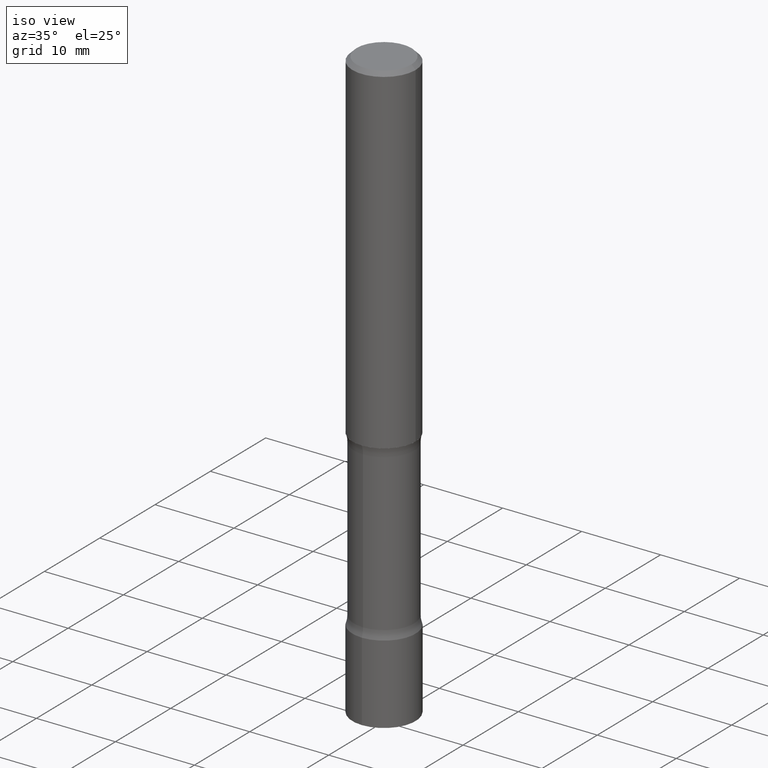
[diagram: clean part render]
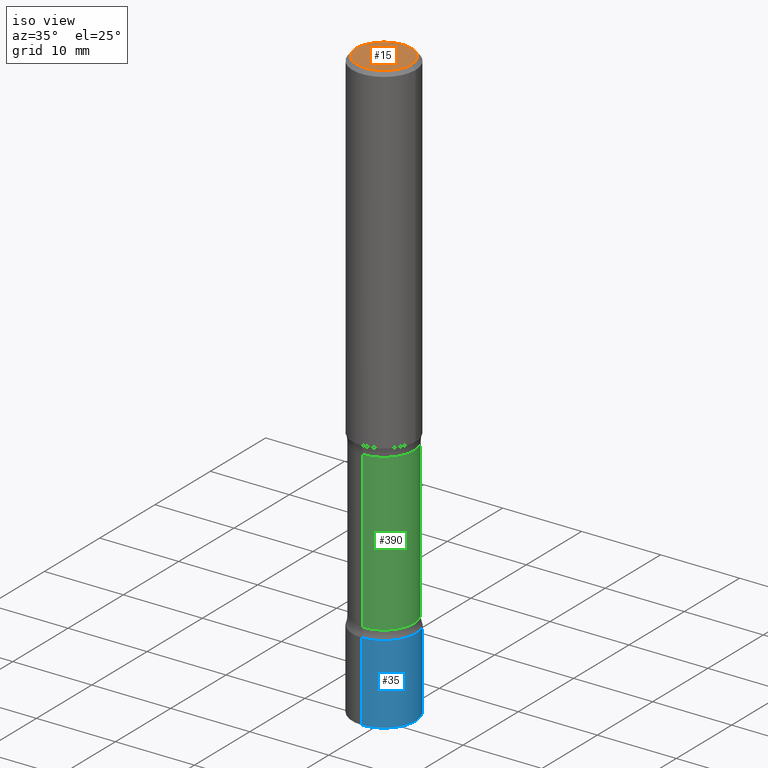
[diagram: same view with three faces highlighted in distinct colors, each labeled with its STEP entity id]
A machine part, iso view with three faces highlighted in distinct colors.
Their STEP definitions:

[orange] entity #15 — the highlighted planar face has unit normal (0, -0, -1).
#5 = CARTESIAN_POINT ( 'NONE',  ( -0.1374999999999997058, 9.950721815702907580E-16, 4.268512490093574228E-18 ) ) ;
#15 = ADVANCED_FACE ( 'NONE', ( #349 ), #304, .F. ) ;
#17 = AXIS2_PLACEMENT_3D ( 'NONE', #232, #28, #420 ) ;
#28 = DIRECTION ( 'NONE',  ( -2.445468806185136597E-29, 3.491481338843145583E-15, 1.000000000000000000 ) ) ;
#67 = EDGE_CURVE ( 'NONE', #365, #215, #293, .T. ) ;
#119 = CARTESIAN_POINT ( 'NONE',  ( 9.601573681818595033E-16, 0.1374999999999997058, -4.779444278458812147E-16 ) ) ;
#134 = AXIS2_PLACEMENT_3D ( 'NONE', #119, #463, #235 ) ;
#210 = CIRCLE ( 'NONE', #305, 0.1374999999999997058 ) ;
#215 = VERTEX_POINT ( 'NONE', #5 ) ;
#232 = CARTESIAN_POINT ( 'NONE',  ( -1.043851414335219820E-46, 1.490343170380447200E-32, 4.268512490100411279E-18 ) ) ;
#235 = DIRECTION ( 'NONE',  ( -1.000000000000000000, 6.982962677686265922E-15, -4.876176775795935793E-29 ) ) ;
#243 = CARTESIAN_POINT ( 'NONE',  ( 0.1374999999999997058, -1.046838268059730519E-15, 4.268512490107428597E-18 ) ) ;
#246 = ORIENTED_EDGE ( 'NONE', *, *, #351, .T. ) ;
#293 = CIRCLE ( 'NONE', #17, 0.1374999999999997058 ) ;
#304 = PLANE ( 'NONE',  #134 ) ;
#305 = AXIS2_PLACEMENT_3D ( 'NONE', #468, #324, #319 ) ;
#319 = DIRECTION ( 'NONE',  ( 1.000000000000000000, -6.982962677686265922E-15, 4.876173381029110692E-29 ) ) ;
#324 = DIRECTION ( 'NONE',  ( -2.445468806185136597E-29, 3.491481338843145583E-15, 1.000000000000000000 ) ) ;
#349 = FACE_OUTER_BOUND ( 'NONE', #412, .T. ) ;
#351 = EDGE_CURVE ( 'NONE', #215, #365, #210, .T. ) ;
#365 = VERTEX_POINT ( 'NONE', #243 ) ;
#412 = EDGE_LOOP ( 'NONE', ( #246, #455 ) ) ;
#420 = DIRECTION ( 'NONE',  ( 1.000000000000000000, -6.982962677686265922E-15, 4.876173381029110692E-29 ) ) ;
#455 = ORIENTED_EDGE ( 'NONE', *, *, #67, .T. ) ;
#463 = DIRECTION ( 'NONE',  ( 2.438088387897960049E-29, -3.491481338843145188E-15, -1.000000000000000000 ) ) ;
#468 = CARTESIAN_POINT ( 'NONE',  ( -1.043851414335219820E-46, 1.490343170380447200E-32, 4.268512490100411279E-18 ) ) ;

[blue] entity #35 — the highlighted cylindrical surface (partial cylindrical patch) has radius 4.0005 mm, axis along (-0, 0, 1).
#6 = ORIENTED_EDGE ( 'NONE', *, *, #432, .F. ) ;
#25 = AXIS2_PLACEMENT_3D ( 'NONE', #112, #151, #426 ) ;
#35 = ADVANCED_FACE ( 'NONE', ( #386 ), #230, .T. ) ;
#41 = CARTESIAN_POINT ( 'NONE',  ( -1.099816621735586494E-15, -0.1574999999999999456, 5.498613975020886768E-16 ) ) ;
#46 = ORIENTED_EDGE ( 'NONE', *, *, #89, .F. ) ;
#72 = VECTOR ( 'NONE', #159, 39.37007874015748143 ) ;
#74 = DIRECTION ( 'NONE',  ( -2.445676802554542366E-29, 3.491183476203738463E-15, 1.000000000000000000 ) ) ;
#82 = DIRECTION ( 'NONE',  ( -2.445676802554542646E-29, 3.491183476203738463E-15, 1.000000000000000000 ) ) ;
#89 = EDGE_CURVE ( 'NONE', #431, #462, #145, .T. ) ;
#90 = EDGE_LOOP ( 'NONE', ( #496, #297, #46, #6 ) ) ;
#112 = CARTESIAN_POINT ( 'NONE',  ( 7.221594462583051654E-29, -1.030876656853439613E-14, -2.952799999999999869 ) ) ;
#117 = DIRECTION ( 'NONE',  ( -2.445676802554542366E-29, 3.491183476203738463E-15, 1.000000000000000000 ) ) ;
#120 = EDGE_CURVE ( 'NONE', #480, #462, #228, .T. ) ;
#145 = CIRCLE ( 'NONE', #282, 0.1574999999999999456 ) ;
#147 = DIRECTION ( 'NONE',  ( -6.982962677686265922E-15, -1.000000000000000000, 3.491183476203738857E-15 ) ) ;
#151 = DIRECTION ( 'NONE',  ( -2.445676802554542366E-29, 3.491183476203738463E-15, 1.000000000000000000 ) ) ;
#157 = CARTESIAN_POINT ( 'NONE',  ( -1.099816621735514116E-15, -0.1575000000000102707, -2.952799999999998981 ) ) ;
#159 = DIRECTION ( 'NONE',  ( -2.445676802554542646E-29, 3.491183476203738463E-15, 1.000000000000000000 ) ) ;
#209 = CARTESIAN_POINT ( 'NONE',  ( 1.119104808822229587E-15, 0.1574999999999910083, -2.559099999999999486 ) ) ;
#228 = LINE ( 'NONE', #506, #72 ) ;
#230 = CYLINDRICAL_SURFACE ( 'NONE', #355, 0.1574999999999999456 ) ;
#269 = CARTESIAN_POINT ( 'NONE',  ( 6.258731505417325033E-29, -8.934287633952984269E-15, -2.559099999999999042 ) ) ;
#282 = AXIS2_PLACEMENT_3D ( 'NONE', #269, #74, #393 ) ;
#288 = LINE ( 'NONE', #41, #487 ) ;
#297 = ORIENTED_EDGE ( 'NONE', *, *, #120, .T. ) ;
#315 = EDGE_CURVE ( 'NONE', #362, #480, #429, .T. ) ;
#355 = AXIS2_PLACEMENT_3D ( 'NONE', #422, #117, #147 ) ;
#362 = VERTEX_POINT ( 'NONE', #157 ) ;
#367 = CARTESIAN_POINT ( 'NONE',  ( 1.119104808822224657E-15, 0.1574999999999896483, -2.952800000000000313 ) ) ;
#386 = FACE_OUTER_BOUND ( 'NONE', #90, .T. ) ;
#393 = DIRECTION ( 'NONE',  ( -6.982962677686265922E-15, -1.000000000000000000, 3.469013325287954477E-15 ) ) ;
#399 = CARTESIAN_POINT ( 'NONE',  ( -1.099816621735523977E-15, -0.1575000000000089106, -2.559099999999998598 ) ) ;
#422 = CARTESIAN_POINT ( 'NONE',  ( 0.000000000000000000, 0.000000000000000000, 0.000000000000000000 ) ) ;
#426 = DIRECTION ( 'NONE',  ( -6.982962677686265922E-15, -1.000000000000000000, 3.469013325287954477E-15 ) ) ;
#429 = CIRCLE ( 'NONE', #25, 0.1574999999999999456 ) ;
#431 = VERTEX_POINT ( 'NONE', #399 ) ;
#432 = EDGE_CURVE ( 'NONE', #362, #431, #288, .T. ) ;
#462 = VERTEX_POINT ( 'NONE', #209 ) ;
#480 = VERTEX_POINT ( 'NONE', #367 ) ;
#487 = VECTOR ( 'NONE', #82, 39.37007874015748143 ) ;
#496 = ORIENTED_EDGE ( 'NONE', *, *, #315, .T. ) ;
#506 = CARTESIAN_POINT ( 'NONE',  ( 1.119104808822157209E-15, 0.1574999999999999456, -5.498613975020886768E-16 ) ) ;

[green] entity #390 — the highlighted cylindrical surface (partial cylindrical patch) has radius 3.7973 mm, axis along (0, -0, -1).
#1 = DIRECTION ( 'NONE',  ( 6.982962677686264344E-15, 1.000000000000000000, -3.654646145370266300E-15 ) ) ;
#2 = CARTESIAN_POINT ( 'NONE',  ( -1.053086442657868786E-15, -0.1495000000000089313, -2.515099999999999003 ) ) ;
#65 = DIRECTION ( 'NONE',  ( 1.998890425235319808E-29, -4.131006998026227215E-15, -1.000000000000000000 ) ) ;
#73 = CIRCLE ( 'NONE', #225, 0.1494999999999994111 ) ;
#93 = ORIENTED_EDGE ( 'NONE', *, *, #385, .T. ) ;
#99 = CIRCLE ( 'NONE', #389, 0.1495000000000001605 ) ;
#103 = ORIENTED_EDGE ( 'NONE', *, *, #278, .F. ) ;
#106 = EDGE_CURVE ( 'NONE', #213, #454, #99, .T. ) ;
#115 = DIRECTION ( 'NONE',  ( 1.998890425235319808E-29, -4.131006998026227215E-15, -1.000000000000000000 ) ) ;
#123 = CYLINDRICAL_SURFACE ( 'NONE', #301, 0.1494999999999997720 ) ;
#132 = CARTESIAN_POINT ( 'NONE',  ( 7.045694665832473199E-29, -1.056066508907591234E-14, -2.952799999999999869 ) ) ;
#136 = VECTOR ( 'NONE', #387, 39.37007874015748143 ) ;
#143 = LINE ( 'NONE', #423, #136 ) ;
#162 = DIRECTION ( 'NONE',  ( 1.998890425235319808E-29, -4.131006998026227215E-15, -1.000000000000000000 ) ) ;
#197 = CARTESIAN_POINT ( 'NONE',  ( 6.170780326706973757E-29, -8.752523326039832143E-15, -2.515099999999999447 ) ) ;
#208 = VERTEX_POINT ( 'NONE', #400 ) ;
#213 = VERTEX_POINT ( 'NONE', #320 ) ;
#225 = AXIS2_PLACEMENT_3D ( 'NONE', #433, #408, #1 ) ;
#253 = ORIENTED_EDGE ( 'NONE', *, *, #106, .F. ) ;
#272 = EDGE_CURVE ( 'NONE', #208, #454, #492, .T. ) ;
#278 = EDGE_CURVE ( 'NONE', #373, #213, #143, .T. ) ;
#301 = AXIS2_PLACEMENT_3D ( 'NONE', #132, #162, #318 ) ;
#318 = DIRECTION ( 'NONE',  ( 6.982962677686265133E-15, 1.000000000000000000, -3.654646145370257623E-15 ) ) ;
#320 = CARTESIAN_POINT ( 'NONE',  ( 1.043952920314159714E-15, 0.1494999999999913898, -2.515100000000000335 ) ) ;
#331 = EDGE_LOOP ( 'NONE', ( #93, #403, #253, #103 ) ) ;
#354 = DIRECTION ( 'NONE',  ( 6.982962677686266711E-15, 1.000000000000000000, -3.654646145370248156E-15 ) ) ;
#363 = CARTESIAN_POINT ( 'NONE',  ( 1.043952920314138612E-15, 0.1494999999999938878, -1.737000000000000099 ) ) ;
#373 = VERTEX_POINT ( 'NONE', #363 ) ;
#385 = EDGE_CURVE ( 'NONE', #373, #208, #73, .T. ) ;
#387 = DIRECTION ( 'NONE',  ( 1.998890425235319808E-29, -4.131006998026227215E-15, -1.000000000000000000 ) ) ;
#389 = AXIS2_PLACEMENT_3D ( 'NONE', #197, #65, #354 ) ;
#390 = ADVANCED_FACE ( 'NONE', ( #434 ), #123, .T. ) ;
#391 = VECTOR ( 'NONE', #115, 39.37007874015748143 ) ;
#400 = CARTESIAN_POINT ( 'NONE',  ( -1.053086442657879830E-15, -0.1495000000000049623, -1.736999999999998989 ) ) ;
#403 = ORIENTED_EDGE ( 'NONE', *, *, #272, .T. ) ;
#408 = DIRECTION ( 'NONE',  ( 1.998890425235319808E-29, -4.131006998026227215E-15, -1.000000000000000000 ) ) ;
#423 = CARTESIAN_POINT ( 'NONE',  ( 1.043952920314165630E-15, 0.1494999999999891971, -2.952800000000000313 ) ) ;
#433 = CARTESIAN_POINT ( 'NONE',  ( 4.615443686831371050E-29, -5.538186780875625307E-15, -1.736999999999999433 ) ) ;
#434 = FACE_OUTER_BOUND ( 'NONE', #331, .T. ) ;
#454 = VERTEX_POINT ( 'NONE', #2 ) ;
#490 = CARTESIAN_POINT ( 'NONE',  ( -1.025644450666771688E-15, -0.1495000000000103468, -2.952799999999998981 ) ) ;
#492 = LINE ( 'NONE', #490, #391 ) ;